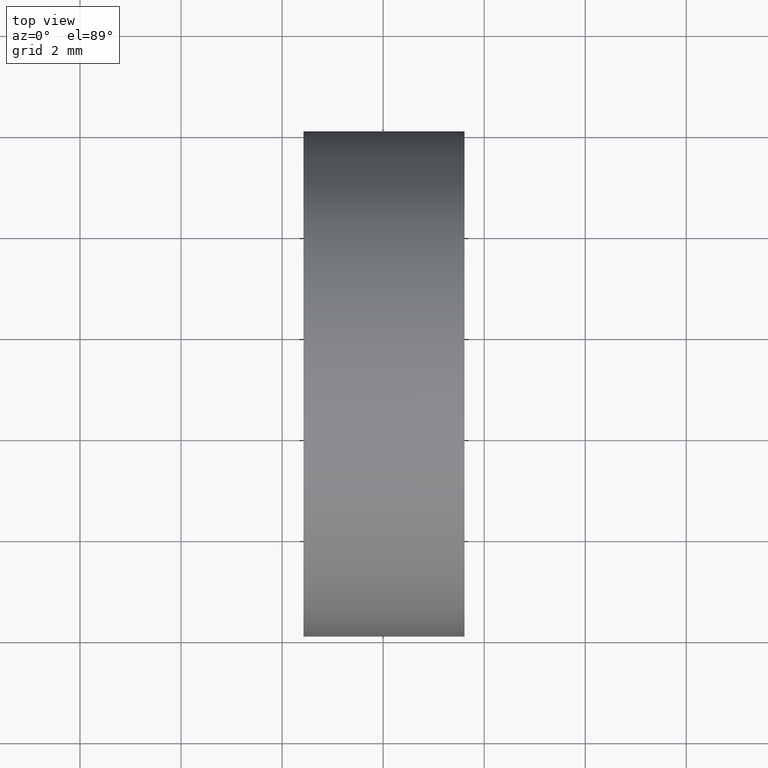
[diagram: clean part render]
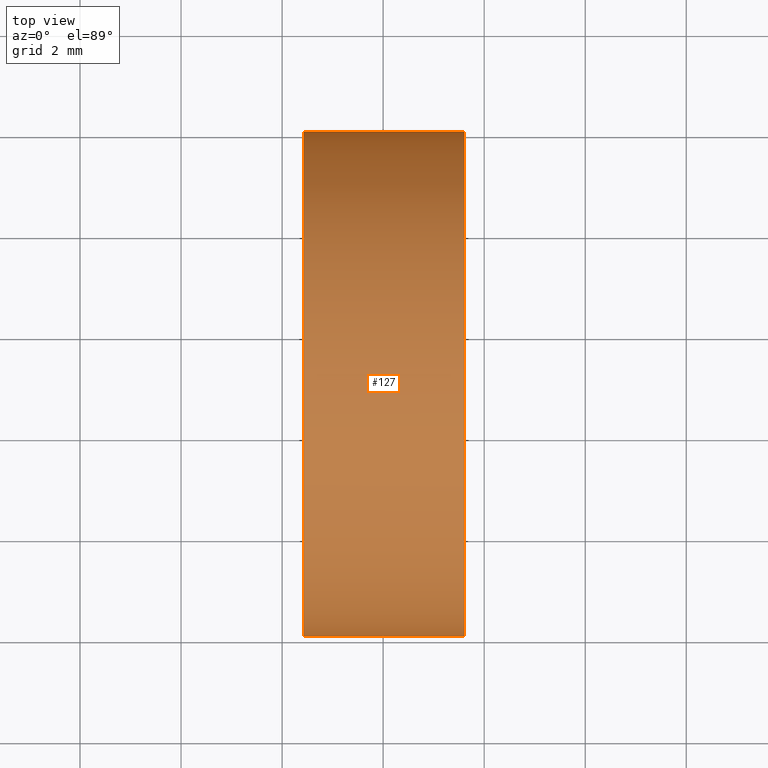
[diagram: same view with one face highlighted and labeled with its STEP entity id]
A machine part, top view. The second image highlights one B-rep face of the part: STEP entity #127.
In plain terms, the highlighted cylindrical surface (partial cylindrical patch) has radius 5 mm, axis along (-1, 0, -0).
Its self-contained STEP definition (entity closure, byte-faithful):
#2 = ORIENTED_EDGE ( 'NONE', *, *, #95, .F. ) ;
#5 = CIRCLE ( 'NONE', #43, 5.000000000000000900 ) ;
#12 = CARTESIAN_POINT ( 'NONE',  ( 21.50597511808246100, 18.03112609140304200, 6.123233995736768300E-016 ) ) ;
#14 = LINE ( 'NONE', #12, #152 ) ;
#15 = DIRECTION ( 'NONE',  ( -1.000000000000000000, 3.159171411554934600E-016, -0.0000000000000000000 ) ) ;
#16 = VERTEX_POINT ( 'NONE', #92 ) ;
#28 = DIRECTION ( 'NONE',  ( -1.000000000000000000, 3.159171411554934600E-016, -0.0000000000000000000 ) ) ;
#39 = CARTESIAN_POINT ( 'NONE',  ( 21.50597511808246100, 8.031126091403040200, 0.0000000000000000000 ) ) ;
#41 = CARTESIAN_POINT ( 'NONE',  ( 25.60946209566776900, 18.03112609140304600, 0.0000000000000000000 ) ) ;
#43 = AXIS2_PLACEMENT_3D ( 'NONE', #116, #28, #156 ) ;
#44 = ORIENTED_EDGE ( 'NONE', *, *, #153, .F. ) ;
#48 = AXIS2_PLACEMENT_3D ( 'NONE', #158, #70, #81 ) ;
#49 = FACE_OUTER_BOUND ( 'NONE', #151, .T. ) ;
#54 = CARTESIAN_POINT ( 'NONE',  ( 22.42423205362066000, 8.031126091403040200, 0.0000000000000000000 ) ) ;
#65 = ORIENTED_EDGE ( 'NONE', *, *, #120, .T. ) ;
#69 = VERTEX_POINT ( 'NONE', #41 ) ;
#70 = DIRECTION ( 'NONE',  ( -1.000000000000000000, 3.159171411554934600E-016, -0.0000000000000000000 ) ) ;
#74 = AXIS2_PLACEMENT_3D ( 'NONE', #146, #15, #118 ) ;
#76 = DIRECTION ( 'NONE',  ( -1.000000000000000000, 3.159171411554934600E-016, -0.0000000000000000000 ) ) ;
#81 = DIRECTION ( 'NONE',  ( 0.0000000000000000000, -1.000000000000000000, 0.0000000000000000000 ) ) ;
#84 = DIRECTION ( 'NONE',  ( -1.000000000000000000, 3.159171411554934600E-016, -0.0000000000000000000 ) ) ;
#89 = VECTOR ( 'NONE', #84, 1000.000000000000000 ) ;
#90 = ORIENTED_EDGE ( 'NONE', *, *, #131, .T. ) ;
#92 = CARTESIAN_POINT ( 'NONE',  ( 22.42423205362066000, 18.03112609140304200, 6.123233995736768300E-016 ) ) ;
#95 = EDGE_CURVE ( 'NONE', #129, #16, #5, .T. ) ;
#107 = LINE ( 'NONE', #39, #89 ) ;
#116 = CARTESIAN_POINT ( 'NONE',  ( 22.42423205362066000, 13.03112609140304200, 0.0000000000000000000 ) ) ;
#118 = DIRECTION ( 'NONE',  ( 0.0000000000000000000, -1.000000000000000000, 0.0000000000000000000 ) ) ;
#120 = EDGE_CURVE ( 'NONE', #165, #69, #154, .T. ) ;
#124 = CYLINDRICAL_SURFACE ( 'NONE', #74, 5.000000000000000900 ) ;
#127 = ADVANCED_FACE ( 'NONE', ( #49 ), #124, .T. ) ;
#129 = VERTEX_POINT ( 'NONE', #54 ) ;
#131 = EDGE_CURVE ( 'NONE', #69, #16, #14, .T. ) ;
#146 = CARTESIAN_POINT ( 'NONE',  ( 21.50597511808246100, 13.03112609140304200, 0.0000000000000000000 ) ) ;
#151 = EDGE_LOOP ( 'NONE', ( #65, #90, #2, #44 ) ) ;
#152 = VECTOR ( 'NONE', #76, 1000.000000000000000 ) ;
#153 = EDGE_CURVE ( 'NONE', #165, #129, #107, .T. ) ;
#154 = CIRCLE ( 'NONE', #48, 5.000000000000002700 ) ;
#156 = DIRECTION ( 'NONE',  ( 0.0000000000000000000, -1.000000000000000000, 0.0000000000000000000 ) ) ;
#158 = CARTESIAN_POINT ( 'NONE',  ( 25.60946209566776600, 13.03112609140304000, 0.0000000000000000000 ) ) ;
#163 = CARTESIAN_POINT ( 'NONE',  ( 25.60946209566776600, 8.031126091403031400, -6.123233995736772200E-016 ) ) ;
#165 = VERTEX_POINT ( 'NONE', #163 ) ;